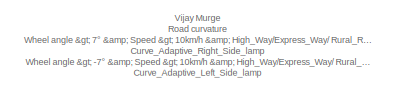
[diagram: root canvas - part 1/14, top right region]
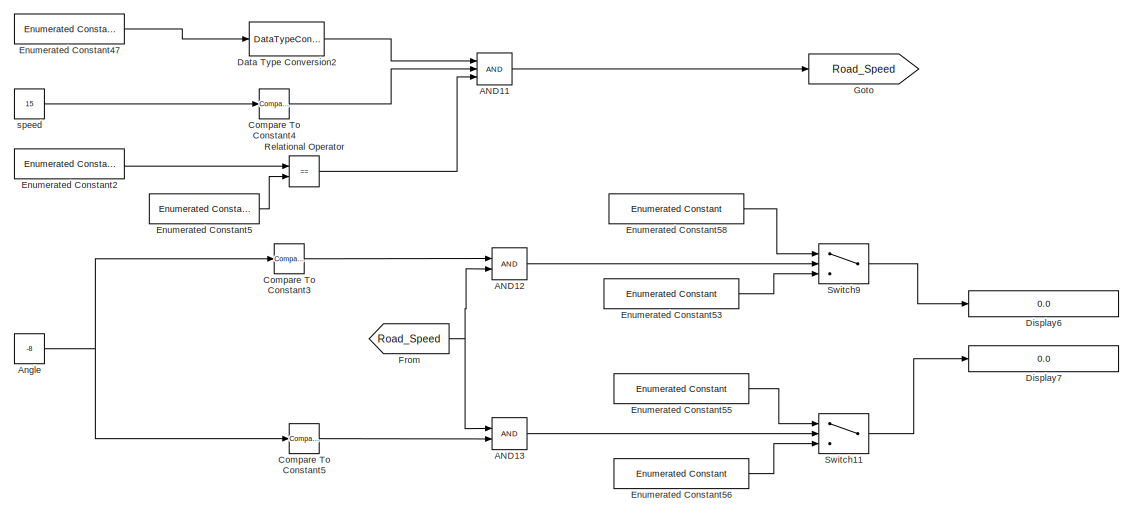
[diagram: root canvas - part 2/14, top right region]
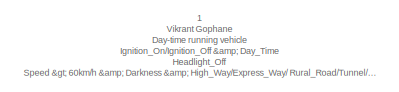
[diagram: root canvas - part 3/14, middle left region]
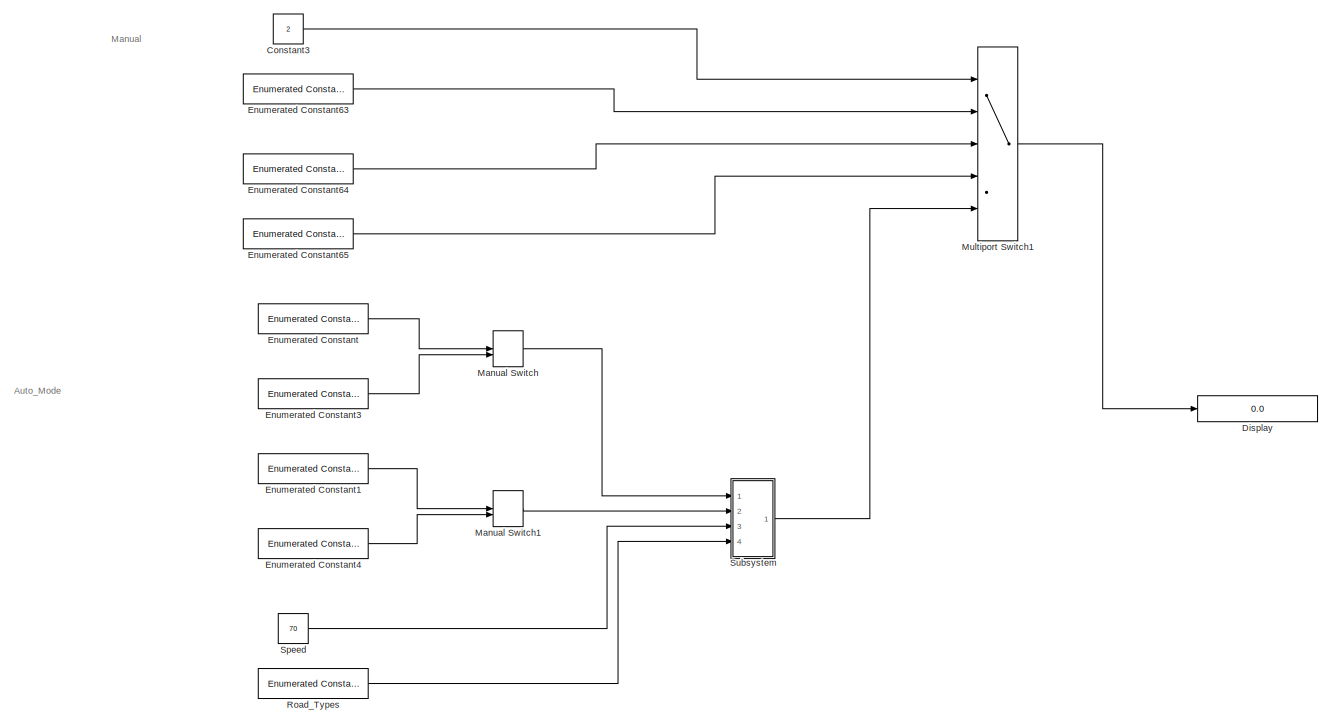
[diagram: root canvas - part 4/14, middle left region]
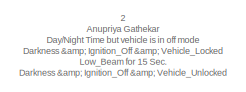
[diagram: root canvas - part 5/14, central region]
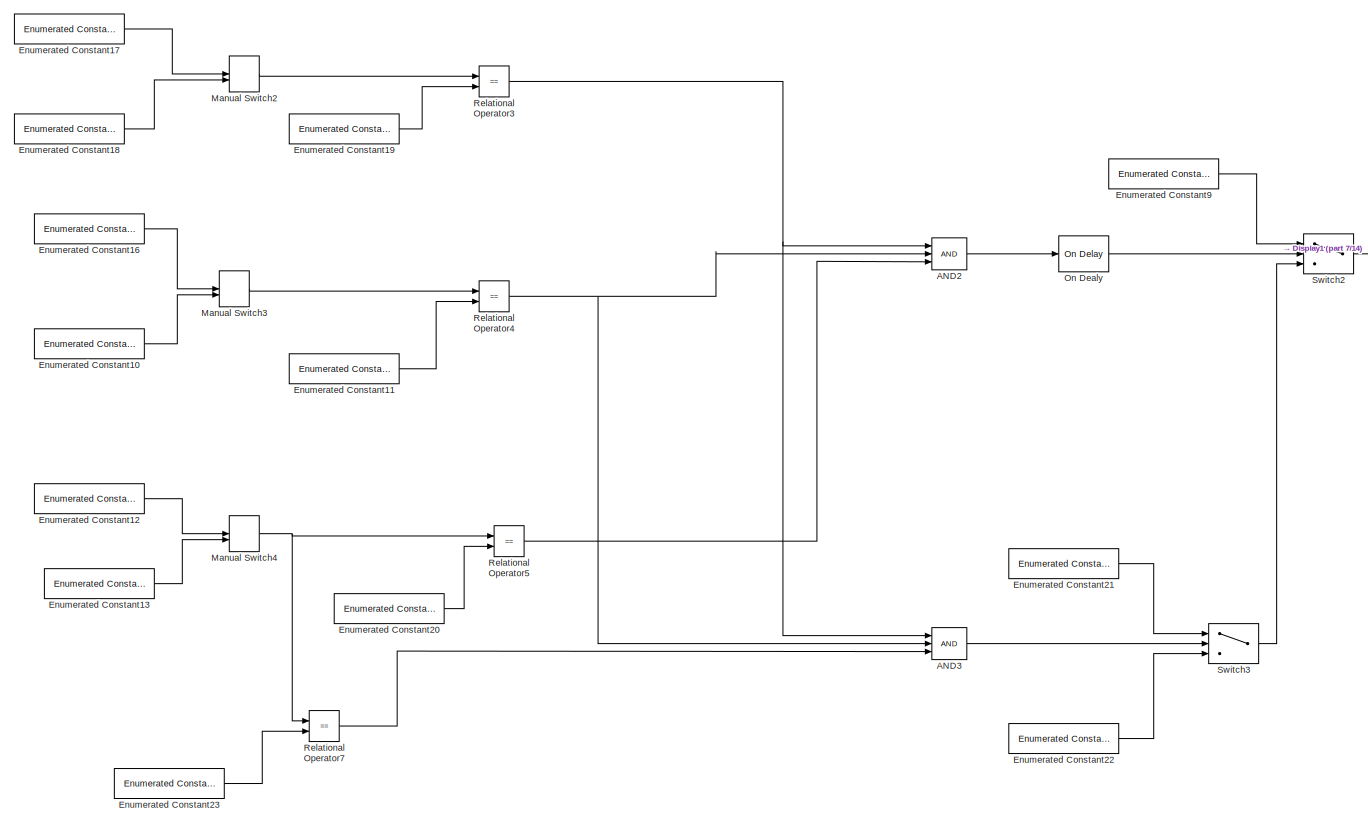
[diagram: root canvas - part 6/14, central region]
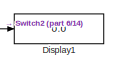
[diagram: root canvas - part 7/14, central region]
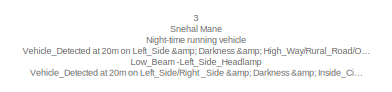
[diagram: root canvas - part 8/14, bottom left region]
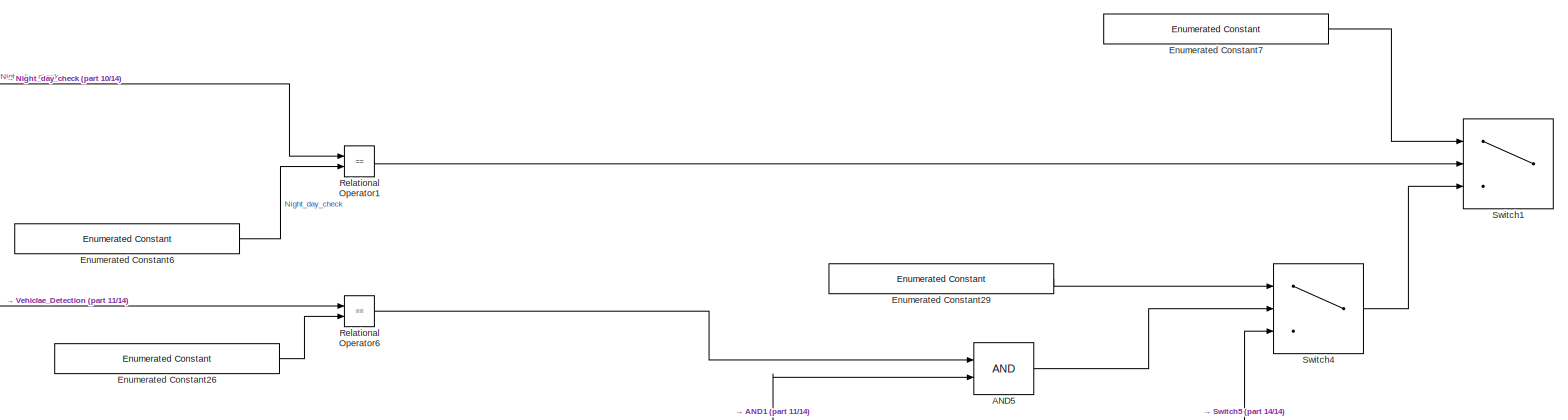
[diagram: root canvas - part 9/14, bottom left region]
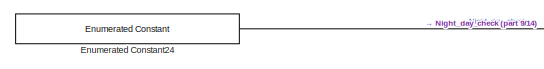
[diagram: root canvas - part 10/14, bottom left region]
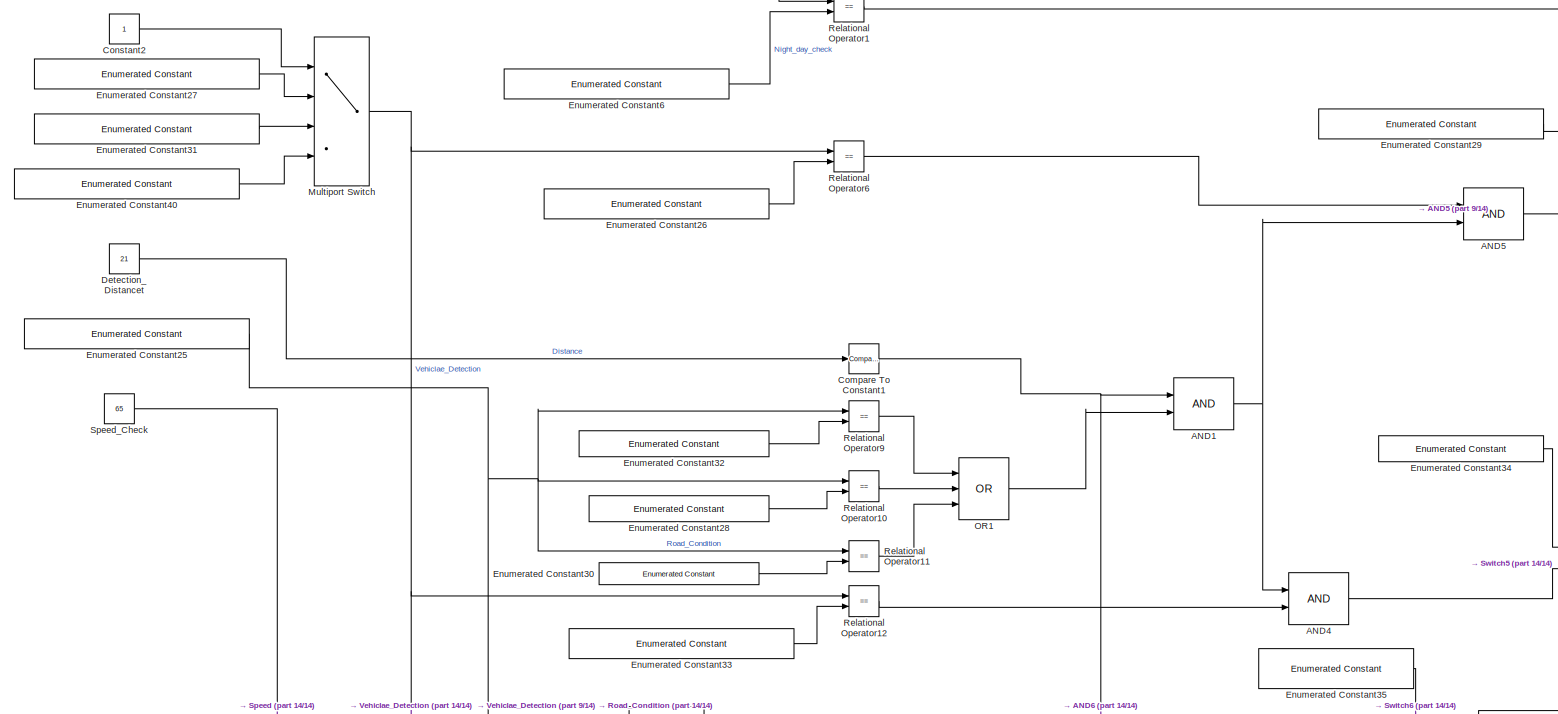
[diagram: root canvas - part 11/14, bottom left region]
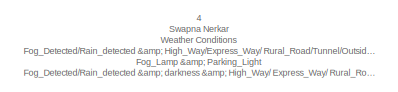
[diagram: root canvas - part 12/14, bottom center region]
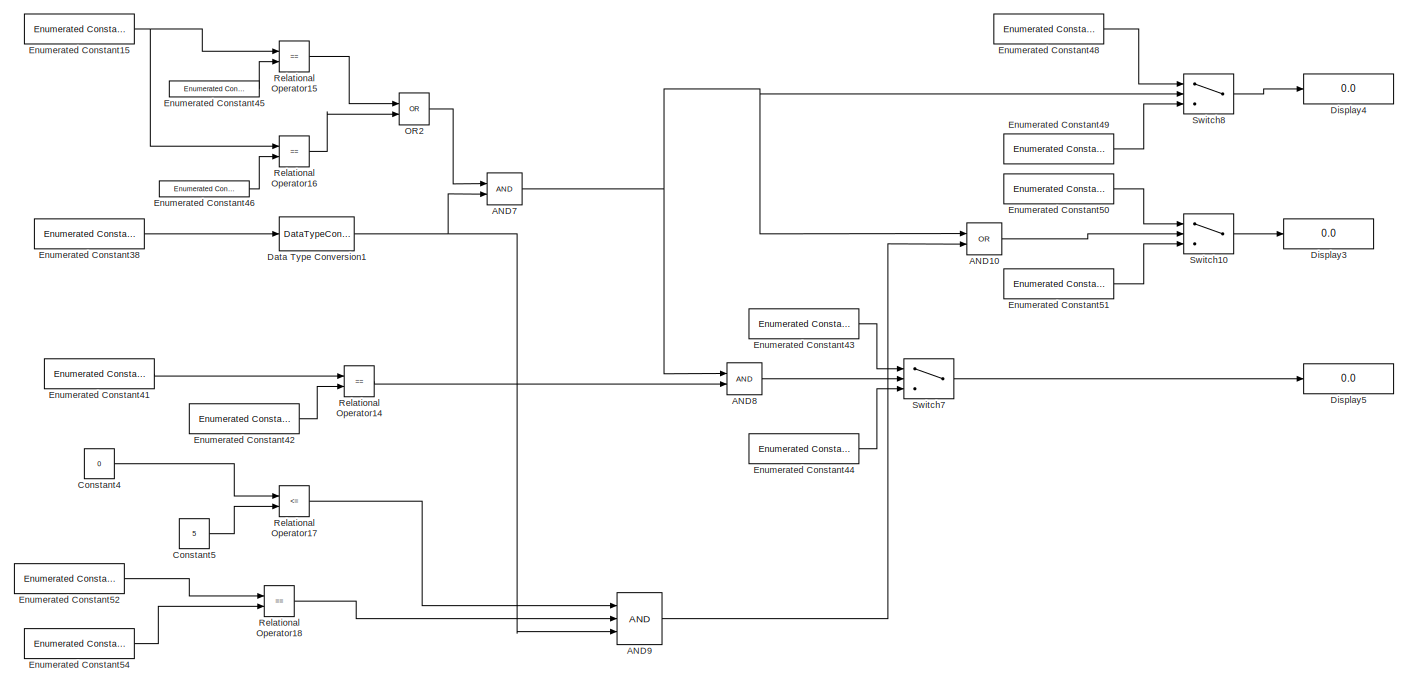
[diagram: root canvas - part 13/14, bottom center region]
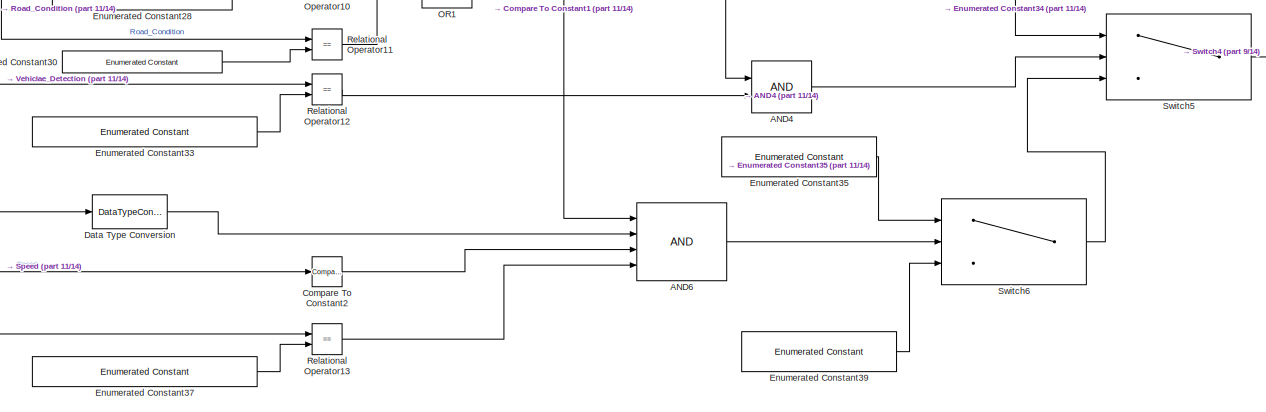
[diagram: root canvas - part 14/14, bottom left region]
MODEL slx_34dd71e5ac38
KIND model
CONFIG AbsTol = auto
CONFIG EnableMultiTasking = off
CONFIG FixedStep = 1
CONFIG MaxStep = auto
CONFIG MinStep = auto
CONFIG RelTol = 1e-3
CONFIG SampleTimeConstraint = Unconstrained
CONFIG Solver = FixedStepDiscrete
CONFIG SolverName = FixedStepDiscrete
CONFIG StartTime = 0.0
CONFIG StopTime = inf
BLOCK [Logic] AND1
  AllPortsSameDT = off
  IconShape = distinctive
  OutDataTypeStr = boolean
  Ports = [2, 1]
BLOCK [Logic] AND10
  AllPortsSameDT = off
  IconShape = distinctive
  Operator = OR
  OutDataTypeStr = boolean
  Ports = [2, 1]
BLOCK [Logic] AND11
  AllPortsSameDT = off
  IconShape = distinctive
  Inputs = 3
  OutDataTypeStr = boolean
  Ports = [3, 1]
BLOCK [Logic] AND12
  AllPortsSameDT = off
  IconShape = distinctive
  OutDataTypeStr = boolean
  Ports = [2, 1]
BLOCK [Logic] AND13
  AllPortsSameDT = off
  IconShape = distinctive
  OutDataTypeStr = boolean
  Ports = [2, 1]
BLOCK [Logic] AND2
  AllPortsSameDT = off
  IconShape = distinctive
  Inputs = 3
  OutDataTypeStr = boolean
  Ports = [3, 1]
BLOCK [Logic] AND3
  AllPortsSameDT = off
  IconShape = distinctive
  Inputs = 3
  OutDataTypeStr = boolean
  Ports = [3, 1]
BLOCK [Logic] AND4
  AllPortsSameDT = off
  IconShape = distinctive
  OutDataTypeStr = boolean
  Ports = [2, 1]
BLOCK [Logic] AND5
  AllPortsSameDT = off
  IconShape = distinctive
  OutDataTypeStr = boolean
  Ports = [2, 1]
BLOCK [Logic] AND6
  AllPortsSameDT = off
  IconShape = distinctive
  Inputs = 4
  OutDataTypeStr = boolean
  Ports = [4, 1]
BLOCK [Logic] AND7
  AllPortsSameDT = off
  IconShape = distinctive
  OutDataTypeStr = boolean
  Ports = [2, 1]
BLOCK [Logic] AND8
  AllPortsSameDT = off
  IconShape = distinctive
  OutDataTypeStr = boolean
  Ports = [2, 1]
BLOCK [Logic] AND9
  AllPortsSameDT = off
  IconShape = distinctive
  Inputs = 3
  OutDataTypeStr = boolean
  Ports = [3, 1]
BLOCK [Constant] Angle
  Value = -8
BLOCK [Reference] Compare To Constant1  REF=simulink/Logic and Bit
Operations/Compare
To Constant
  Ports = [1, 1]
  SourceBlock = simulink/Logic and Bit\nOperations/Compare\nTo Constant
  SourceProductBaseCode = SL
  SourceType = Compare To Constant
BLOCK [Reference] Compare To Constant2  REF=simulink/Logic and Bit
Operations/Compare
To Constant
  Ports = [1, 1]
  SourceBlock = simulink/Logic and Bit\nOperations/Compare\nTo Constant
  SourceProductBaseCode = SL
  SourceType = Compare To Constant
BLOCK [Reference] Compare To Constant3  REF=simulink/Logic and Bit
Operations/Compare
To Constant
  Ports = [1, 1]
  SourceBlock = simulink/Logic and Bit\nOperations/Compare\nTo Constant
  SourceProductBaseCode = SL
  SourceType = Compare To Constant
BLOCK [Reference] Compare To Constant4  REF=simulink/Logic and Bit
Operations/Compare
To Constant
  Ports = [1, 1]
  SourceBlock = simulink/Logic and Bit\nOperations/Compare\nTo Constant
  SourceProductBaseCode = SL
  SourceType = Compare To Constant
BLOCK [Reference] Compare To Constant5  REF=simulink/Logic and Bit
Operations/Compare
To Constant
  Ports = [1, 1]
  SourceBlock = simulink/Logic and Bit\nOperations/Compare\nTo Constant
  SourceProductBaseCode = SL
  SourceType = Compare To Constant
BLOCK [Constant] Constant2
BLOCK [Constant] Constant3
  Value = 2
BLOCK [Constant] Constant4
  Value = 0
BLOCK [Constant] Constant5
  Value = 5
BLOCK [DataTypeConversion] Data Type Conversion
  RndMeth = Floor
  SaturateOnIntegerOverflow = off
BLOCK [DataTypeConversion] Data Type Conversion1
  RndMeth = Floor
  SaturateOnIntegerOverflow = off
BLOCK [DataTypeConversion] Data Type Conversion2
  OutDataTypeStr = boolean
  RndMeth = Floor
  SaturateOnIntegerOverflow = off
BLOCK [Constant] Detection_Distancet
  Value = 21
BLOCK [Display] Display
  Decimation = 1
  Ports = [1]
BLOCK [Display] Display1
  Decimation = 1
  Ports = [1]
BLOCK [Display] Display3
  Decimation = 1
  Ports = [1]
BLOCK [Display] Display4
  Decimation = 1
  Ports = [1]
BLOCK [Display] Display5
  Decimation = 1
  Ports = [1]
BLOCK [Display] Display6
  Decimation = 1
  Ports = [1]
BLOCK [Display] Display7
  Decimation = 1
  Ports = [1]
BLOCK [Reference] Enumerated Constant  REF=simulink/Sources/Enumerated
Constant
  Ports = [0, 1]
  SourceBlock = simulink/Sources/Enumerated\nConstant
  SourceProductBaseCode = SL
  SourceType = Enumerated Constant
BLOCK [Reference] Enumerated Constant1  REF=simulink/Sources/Enumerated
Constant
  Ports = [0, 1]
  SourceBlock = simulink/Sources/Enumerated\nConstant
  SourceProductBaseCode = SL
  SourceType = Enumerated Constant
BLOCK [Reference] Enumerated Constant10  REF=simulink/Sources/Enumerated
Constant
  Ports = [0, 1]
  SourceBlock = simulink/Sources/Enumerated\nConstant
  SourceProductBaseCode = SL
  SourceType = Enumerated Constant
BLOCK [Reference] Enumerated Constant11  REF=simulink/Sources/Enumerated
Constant
  Ports = [0, 1]
  SourceBlock = simulink/Sources/Enumerated\nConstant
  SourceProductBaseCode = SL
  SourceType = Enumerated Constant
BLOCK [Reference] Enumerated Constant12  REF=simulink/Sources/Enumerated
Constant
  Ports = [0, 1]
  SourceBlock = simulink/Sources/Enumerated\nConstant
  SourceProductBaseCode = SL
  SourceType = Enumerated Constant
BLOCK [Reference] Enumerated Constant13  REF=simulink/Sources/Enumerated
Constant
  Ports = [0, 1]
  SourceBlock = simulink/Sources/Enumerated\nConstant
  SourceProductBaseCode = SL
  SourceType = Enumerated Constant
BLOCK [Reference] Enumerated Constant15  REF=simulink/Sources/Enumerated
Constant
  Ports = [0, 1]
  SourceBlock = simulink/Sources/Enumerated\nConstant
  SourceProductBaseCode = SL
  SourceType = Enumerated Constant
BLOCK [Reference] Enumerated Constant16  REF=simulink/Sources/Enumerated
Constant
  Ports = [0, 1]
  SourceBlock = simulink/Sources/Enumerated\nConstant
  SourceProductBaseCode = SL
  SourceType = Enumerated Constant
BLOCK [Reference] Enumerated Constant17  REF=simulink/Sources/Enumerated
Constant
  Ports = [0, 1]
  SourceBlock = simulink/Sources/Enumerated\nConstant
  SourceProductBaseCode = SL
  SourceType = Enumerated Constant
BLOCK [Reference] Enumerated Constant18  REF=simulink/Sources/Enumerated
Constant
  Ports = [0, 1]
  SourceBlock = simulink/Sources/Enumerated\nConstant
  SourceProductBaseCode = SL
  SourceType = Enumerated Constant
BLOCK [Reference] Enumerated Constant19  REF=simulink/Sources/Enumerated
Constant
  Ports = [0, 1]
  SourceBlock = simulink/Sources/Enumerated\nConstant
  SourceProductBaseCode = SL
  SourceType = Enumerated Constant
BLOCK [Reference] Enumerated Constant2  REF=simulink/Sources/Enumerated
Constant
  Ports = [0, 1]
  SourceBlock = simulink/Sources/Enumerated\nConstant
  SourceProductBaseCode = SL
  SourceType = Enumerated Constant
BLOCK [Reference] Enumerated Constant20  REF=simulink/Sources/Enumerated
Constant
  Ports = [0, 1]
  SourceBlock = simulink/Sources/Enumerated\nConstant
  SourceProductBaseCode = SL
  SourceType = Enumerated Constant
BLOCK [Reference] Enumerated Constant21  REF=simulink/Sources/Enumerated
Constant
  Ports = [0, 1]
  SourceBlock = simulink/Sources/Enumerated\nConstant
  SourceProductBaseCode = SL
  SourceType = Enumerated Constant
BLOCK [Reference] Enumerated Constant22  REF=simulink/Sources/Enumerated
Constant
  Ports = [0, 1]
  SourceBlock = simulink/Sources/Enumerated\nConstant
  SourceProductBaseCode = SL
  SourceType = Enumerated Constant
BLOCK [Reference] Enumerated Constant23  REF=simulink/Sources/Enumerated
Constant
  Ports = [0, 1]
  SourceBlock = simulink/Sources/Enumerated\nConstant
  SourceProductBaseCode = SL
  SourceType = Enumerated Constant
BLOCK [Reference] Enumerated Constant24  REF=simulink/Sources/Enumerated
Constant
  Ports = [0, 1]
  SourceBlock = simulink/Sources/Enumerated\nConstant
  SourceProductBaseCode = SL
  SourceType = Enumerated Constant
BLOCK [Reference] Enumerated Constant25  REF=simulink/Sources/Enumerated
Constant
  Ports = [0, 1]
  SourceBlock = simulink/Sources/Enumerated\nConstant
  SourceProductBaseCode = SL
  SourceType = Enumerated Constant
BLOCK [Reference] Enumerated Constant26  REF=simulink/Sources/Enumerated
Constant
  Ports = [0, 1]
  SourceBlock = simulink/Sources/Enumerated\nConstant
  SourceProductBaseCode = SL
  SourceType = Enumerated Constant
BLOCK [Reference] Enumerated Constant27  REF=simulink/Sources/Enumerated
Constant
  Ports = [0, 1]
  SourceBlock = simulink/Sources/Enumerated\nConstant
  SourceProductBaseCode = SL
  SourceType = Enumerated Constant
BLOCK [Reference] Enumerated Constant28  REF=simulink/Sources/Enumerated
Constant
  Ports = [0, 1]
  SourceBlock = simulink/Sources/Enumerated\nConstant
  SourceProductBaseCode = SL
  SourceType = Enumerated Constant
BLOCK [Reference] Enumerated Constant29  REF=simulink/Sources/Enumerated
Constant
  Ports = [0, 1]
  SourceBlock = simulink/Sources/Enumerated\nConstant
  SourceProductBaseCode = SL
  SourceType = Enumerated Constant
BLOCK [Reference] Enumerated Constant3  REF=simulink/Sources/Enumerated
Constant
  Ports = [0, 1]
  SourceBlock = simulink/Sources/Enumerated\nConstant
  SourceProductBaseCode = SL
  SourceType = Enumerated Constant
BLOCK [Reference] Enumerated Constant30  REF=simulink/Sources/Enumerated
Constant
  Ports = [0, 1]
  SourceBlock = simulink/Sources/Enumerated\nConstant
  SourceProductBaseCode = SL
  SourceType = Enumerated Constant
BLOCK [Reference] Enumerated Constant31  REF=simulink/Sources/Enumerated
Constant
  Ports = [0, 1]
  SourceBlock = simulink/Sources/Enumerated\nConstant
  SourceProductBaseCode = SL
  SourceType = Enumerated Constant
BLOCK [Reference] Enumerated Constant32  REF=simulink/Sources/Enumerated
Constant
  Ports = [0, 1]
  SourceBlock = simulink/Sources/Enumerated\nConstant
  SourceProductBaseCode = SL
  SourceType = Enumerated Constant
BLOCK [Reference] Enumerated Constant33  REF=simulink/Sources/Enumerated
Constant
  Ports = [0, 1]
  SourceBlock = simulink/Sources/Enumerated\nConstant
  SourceProductBaseCode = SL
  SourceType = Enumerated Constant
BLOCK [Reference] Enumerated Constant34  REF=simulink/Sources/Enumerated
Constant
  Ports = [0, 1]
  SourceBlock = simulink/Sources/Enumerated\nConstant
  SourceProductBaseCode = SL
  SourceType = Enumerated Constant
BLOCK [Reference] Enumerated Constant35  REF=simulink/Sources/Enumerated
Constant
  Ports = [0, 1]
  SourceBlock = simulink/Sources/Enumerated\nConstant
  SourceProductBaseCode = SL
  SourceType = Enumerated Constant
BLOCK [Reference] Enumerated Constant37  REF=simulink/Sources/Enumerated
Constant
  Ports = [0, 1]
  SourceBlock = simulink/Sources/Enumerated\nConstant
  SourceProductBaseCode = SL
  SourceType = Enumerated Constant
BLOCK [Reference] Enumerated Constant38  REF=simulink/Sources/Enumerated
Constant
  Ports = [0, 1]
  SourceBlock = simulink/Sources/Enumerated\nConstant
  SourceProductBaseCode = SL
  SourceType = Enumerated Constant
BLOCK [Reference] Enumerated Constant39  REF=simulink/Sources/Enumerated
Constant
  Ports = [0, 1]
  SourceBlock = simulink/Sources/Enumerated\nConstant
  SourceProductBaseCode = SL
  SourceType = Enumerated Constant
BLOCK [Reference] Enumerated Constant4  REF=simulink/Sources/Enumerated
Constant
  Ports = [0, 1]
  SourceBlock = simulink/Sources/Enumerated\nConstant
  SourceProductBaseCode = SL
  SourceType = Enumerated Constant
BLOCK [Reference] Enumerated Constant40  REF=simulink/Sources/Enumerated
Constant
  Ports = [0, 1]
  SourceBlock = simulink/Sources/Enumerated\nConstant
  SourceProductBaseCode = SL
  SourceType = Enumerated Constant
BLOCK [Reference] Enumerated Constant41  REF=simulink/Sources/Enumerated
Constant
  Ports = [0, 1]
  SourceBlock = simulink/Sources/Enumerated\nConstant
  SourceProductBaseCode = SL
  SourceType = Enumerated Constant
BLOCK [Reference] Enumerated Constant42  REF=simulink/Sources/Enumerated
Constant
  Ports = [0, 1]
  SourceBlock = simulink/Sources/Enumerated\nConstant
  SourceProductBaseCode = SL
  SourceType = Enumerated Constant
BLOCK [Reference] Enumerated Constant43  REF=simulink/Sources/Enumerated
Constant
  Ports = [0, 1]
  SourceBlock = simulink/Sources/Enumerated\nConstant
  SourceProductBaseCode = SL
  SourceType = Enumerated Constant
BLOCK [Reference] Enumerated Constant44  REF=simulink/Sources/Enumerated
Constant
  Ports = [0, 1]
  SourceBlock = simulink/Sources/Enumerated\nConstant
  SourceProductBaseCode = SL
  SourceType = Enumerated Constant
BLOCK [Reference] Enumerated Constant45  REF=simulink/Sources/Enumerated
Constant
  Ports = [0, 1]
  SourceBlock = simulink/Sources/Enumerated\nConstant
  SourceProductBaseCode = SL
  SourceType = Enumerated Constant
BLOCK [Reference] Enumerated Constant46  REF=simulink/Sources/Enumerated
Constant
  Ports = [0, 1]
  SourceBlock = simulink/Sources/Enumerated\nConstant
  SourceProductBaseCode = SL
  SourceType = Enumerated Constant
BLOCK [Reference] Enumerated Constant47  REF=simulink/Sources/Enumerated
Constant
  Ports = [0, 1]
  SourceBlock = simulink/Sources/Enumerated\nConstant
  SourceProductBaseCode = SL
  SourceType = Enumerated Constant
BLOCK [Reference] Enumerated Constant48  REF=simulink/Sources/Enumerated
Constant
  Ports = [0, 1]
  SourceBlock = simulink/Sources/Enumerated\nConstant
  SourceProductBaseCode = SL
  SourceType = Enumerated Constant
BLOCK [Reference] Enumerated Constant49  REF=simulink/Sources/Enumerated
Constant
  Ports = [0, 1]
  SourceBlock = simulink/Sources/Enumerated\nConstant
  SourceProductBaseCode = SL
  SourceType = Enumerated Constant
BLOCK [Reference] Enumerated Constant5  REF=simulink/Sources/Enumerated
Constant
  Ports = [0, 1]
  SourceBlock = simulink/Sources/Enumerated\nConstant
  SourceProductBaseCode = SL
  SourceType = Enumerated Constant
BLOCK [Reference] Enumerated Constant50  REF=simulink/Sources/Enumerated
Constant
  Ports = [0, 1]
  SourceBlock = simulink/Sources/Enumerated\nConstant
  SourceProductBaseCode = SL
  SourceType = Enumerated Constant
BLOCK [Reference] Enumerated Constant51  REF=simulink/Sources/Enumerated
Constant
  Ports = [0, 1]
  SourceBlock = simulink/Sources/Enumerated\nConstant
  SourceProductBaseCode = SL
  SourceType = Enumerated Constant
BLOCK [Reference] Enumerated Constant52  REF=simulink/Sources/Enumerated
Constant
  Ports = [0, 1]
  SourceBlock = simulink/Sources/Enumerated\nConstant
  SourceProductBaseCode = SL
  SourceType = Enumerated Constant
BLOCK [Reference] Enumerated Constant53  REF=simulink/Sources/Enumerated
Constant
  Ports = [0, 1]
  SourceBlock = simulink/Sources/Enumerated\nConstant
  SourceProductBaseCode = SL
  SourceType = Enumerated Constant
BLOCK [Reference] Enumerated Constant54  REF=simulink/Sources/Enumerated
Constant
  Ports = [0, 1]
  SourceBlock = simulink/Sources/Enumerated\nConstant
  SourceProductBaseCode = SL
  SourceType = Enumerated Constant
BLOCK [Reference] Enumerated Constant55  REF=simulink/Sources/Enumerated
Constant
  Ports = [0, 1]
  SourceBlock = simulink/Sources/Enumerated\nConstant
  SourceProductBaseCode = SL
  SourceType = Enumerated Constant
BLOCK [Reference] Enumerated Constant56  REF=simulink/Sources/Enumerated
Constant
  Ports = [0, 1]
  SourceBlock = simulink/Sources/Enumerated\nConstant
  SourceProductBaseCode = SL
  SourceType = Enumerated Constant
BLOCK [Reference] Enumerated Constant58  REF=simulink/Sources/Enumerated
Constant
  Ports = [0, 1]
  SourceBlock = simulink/Sources/Enumerated\nConstant
  SourceProductBaseCode = SL
  SourceType = Enumerated Constant
BLOCK [Reference] Enumerated Constant6  REF=simulink/Sources/Enumerated
Constant
  Ports = [0, 1]
  SourceBlock = simulink/Sources/Enumerated\nConstant
  SourceProductBaseCode = SL
  SourceType = Enumerated Constant
BLOCK [Reference] Enumerated Constant63  REF=simulink/Sources/Enumerated
Constant
  Ports = [0, 1]
  SourceBlock = simulink/Sources/Enumerated\nConstant
  SourceProductBaseCode = SL
  SourceType = Enumerated Constant
BLOCK [Reference] Enumerated Constant64  REF=simulink/Sources/Enumerated
Constant
  Ports = [0, 1]
  SourceBlock = simulink/Sources/Enumerated\nConstant
  SourceProductBaseCode = SL
  SourceType = Enumerated Constant
BLOCK [Reference] Enumerated Constant65  REF=simulink/Sources/Enumerated
Constant
  Ports = [0, 1]
  SourceBlock = simulink/Sources/Enumerated\nConstant
  SourceProductBaseCode = SL
  SourceType = Enumerated Constant
BLOCK [Reference] Enumerated Constant7  REF=simulink/Sources/Enumerated
Constant
  Ports = [0, 1]
  SourceBlock = simulink/Sources/Enumerated\nConstant
  SourceProductBaseCode = SL
  SourceType = Enumerated Constant
BLOCK [Reference] Enumerated Constant9  REF=simulink/Sources/Enumerated
Constant
  Ports = [0, 1]
  SourceBlock = simulink/Sources/Enumerated\nConstant
  SourceProductBaseCode = SL
  SourceType = Enumerated Constant
BLOCK [From] From
  GotoTag = Road_Speed
BLOCK [Goto] Goto
  GotoTag = Road_Speed
BLOCK [ManualSwitch] Manual Switch
  CurrentSetting = 0
BLOCK [ManualSwitch] Manual Switch1
BLOCK [ManualSwitch] Manual Switch2
  CurrentSetting = 0
BLOCK [ManualSwitch] Manual Switch3
  CurrentSetting = 0
BLOCK [ManualSwitch] Manual Switch4
BLOCK [MultiPortSwitch] Multiport Switch
  InputSameDT = off
  Ports = [4, 1]
  SaturateOnIntegerOverflow = off
BLOCK [MultiPortSwitch] Multiport Switch1
  InputSameDT = off
  Inputs = 4
  Ports = [5, 1]
  SaturateOnIntegerOverflow = off
BLOCK [Logic] OR1
  AllPortsSameDT = off
  IconShape = distinctive
  Inputs = 3
  Operator = OR
  OutDataTypeStr = boolean
  Ports = [3, 1]
BLOCK [Logic] OR2
  AllPortsSameDT = off
  IconShape = distinctive
  Operator = OR
  OutDataTypeStr = boolean
  Ports = [2, 1]
BLOCK [Reference] On Dealy  REF=powerlib_meascontrol/Logic/On Delay
  Ports = [1, 1]
  SourceBlock = powerlib_meascontrol/Logic/On Delay
  SourceProductBaseCode = PS
  SourceType = On/Off Delay
BLOCK [RelationalOperator] Relational Operator
  InputSameDT = off
  Operator = ==
  OutDataTypeStr = boolean
  Ports = [2, 1]
  RndMeth = Simplest
BLOCK [RelationalOperator] Relational Operator1
  InputSameDT = off
  Operator = ==
  OutDataTypeStr = boolean
  Ports = [2, 1]
  RndMeth = Simplest
BLOCK [RelationalOperator] Relational Operator10
  InputSameDT = off
  Operator = ==
  OutDataTypeStr = boolean
  Ports = [2, 1]
  RndMeth = Simplest
BLOCK [RelationalOperator] Relational Operator11
  InputSameDT = off
  Operator = ==
  OutDataTypeStr = boolean
  Ports = [2, 1]
  RndMeth = Simplest
BLOCK [RelationalOperator] Relational Operator12
  InputSameDT = off
  Operator = ==
  OutDataTypeStr = boolean
  Ports = [2, 1]
  RndMeth = Simplest
BLOCK [RelationalOperator] Relational Operator13
  InputSameDT = off
  Operator = ==
  OutDataTypeStr = boolean
  Ports = [2, 1]
  RndMeth = Simplest
BLOCK [RelationalOperator] Relational Operator14
  InputSameDT = off
  Operator = ==
  OutDataTypeStr = boolean
  Ports = [2, 1]
  RndMeth = Simplest
BLOCK [RelationalOperator] Relational Operator15
  InputSameDT = off
  Operator = ==
  OutDataTypeStr = boolean
  Ports = [2, 1]
  RndMeth = Simplest
BLOCK [RelationalOperator] Relational Operator16
  InputSameDT = off
  Operator = ==
  OutDataTypeStr = boolean
  Ports = [2, 1]
  RndMeth = Simplest
BLOCK [RelationalOperator] Relational Operator17
  InputSameDT = off
  Operator = <=
  OutDataTypeStr = boolean
  Ports = [2, 1]
  RndMeth = Simplest
BLOCK [RelationalOperator] Relational Operator18
  InputSameDT = off
  Operator = ==
  OutDataTypeStr = boolean
  Ports = [2, 1]
  RndMeth = Simplest
BLOCK [RelationalOperator] Relational Operator3
  InputSameDT = off
  Operator = ==
  OutDataTypeStr = boolean
  Ports = [2, 1]
  RndMeth = Simplest
BLOCK [RelationalOperator] Relational Operator4
  InputSameDT = off
  Operator = ==
  OutDataTypeStr = boolean
  Ports = [2, 1]
  RndMeth = Simplest
BLOCK [RelationalOperator] Relational Operator5
  InputSameDT = off
  Operator = ==
  OutDataTypeStr = boolean
  Ports = [2, 1]
  RndMeth = Simplest
BLOCK [RelationalOperator] Relational Operator6
  InputSameDT = off
  Operator = ==
  OutDataTypeStr = boolean
  Ports = [2, 1]
  RndMeth = Simplest
BLOCK [RelationalOperator] Relational Operator7
  InputSameDT = off
  Operator = ==
  OutDataTypeStr = boolean
  Ports = [2, 1]
  RndMeth = Simplest
BLOCK [RelationalOperator] Relational Operator9
  InputSameDT = off
  Operator = ==
  OutDataTypeStr = boolean
  Ports = [2, 1]
  RndMeth = Simplest
BLOCK [Reference] Road_Types  REF=simulink/Sources/Enumerated
Constant
  Ports = [0, 1]
  SourceBlock = simulink/Sources/Enumerated\nConstant
  SourceProductBaseCode = SL
  SourceType = Enumerated Constant
BLOCK [Constant] Speed
  Value = 70
BLOCK [Constant] Speed_Check
  Value = 65
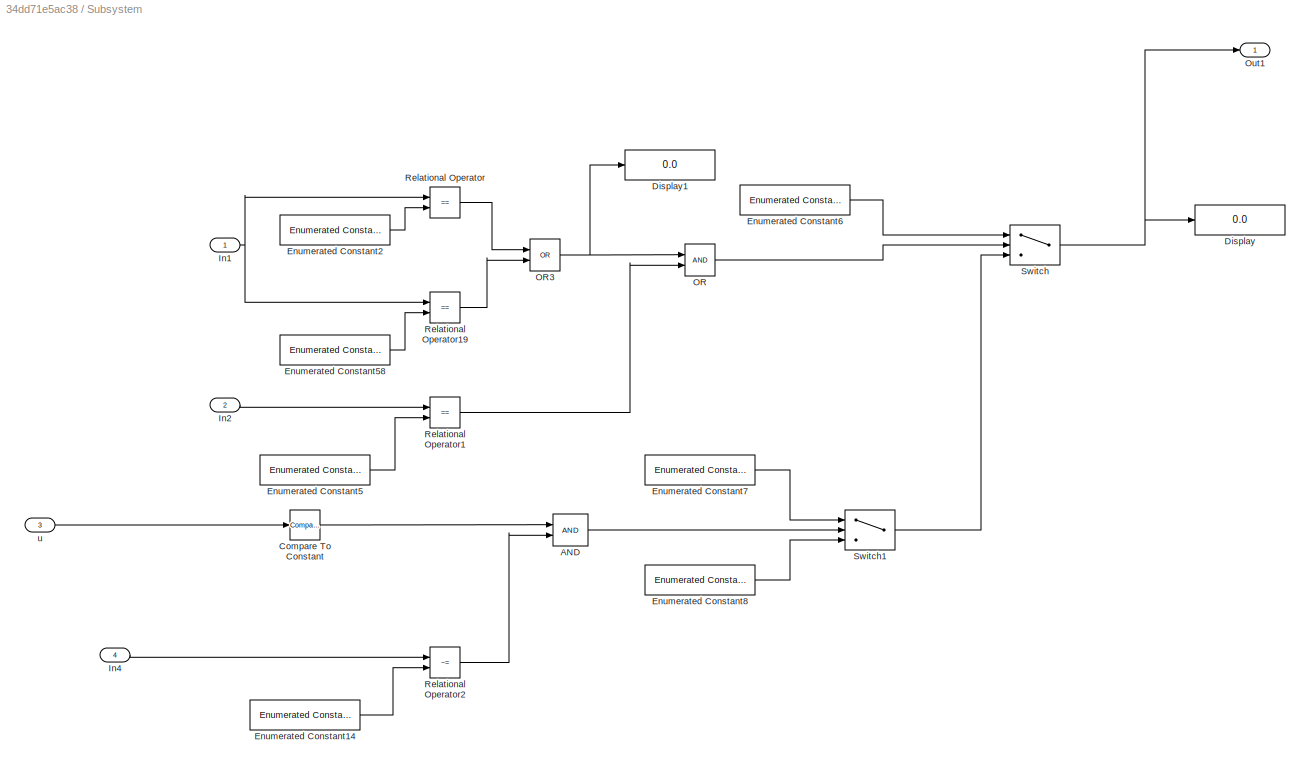
BLOCK [SubSystem] Subsystem
  Ports = [4, 1]
  RequestExecContextInheritance = off
BLOCK [Logic] Subsystem/AND
  AllPortsSameDT = off
  IconShape = distinctive
  OutDataTypeStr = boolean
  Ports = [2, 1]
BLOCK [Reference] Subsystem/Compare To Constant  REF=simulink/Logic and Bit
Operations/Compare
To Constant
  Ports = [1, 1]
  SourceBlock = simulink/Logic and Bit\nOperations/Compare\nTo Constant
  SourceProductBaseCode = SL
  SourceType = Compare To Constant
BLOCK [Display] Subsystem/Display
  Decimation = 1
  Ports = [1]
BLOCK [Display] Subsystem/Display1
  Decimation = 1
  Ports = [1]
BLOCK [Reference] Subsystem/Enumerated Constant14  REF=simulink/Sources/Enumerated
Constant
  Ports = [0, 1]
  SourceBlock = simulink/Sources/Enumerated\nConstant
  SourceProductBaseCode = SL
  SourceType = Enumerated Constant
BLOCK [Reference] Subsystem/Enumerated Constant2  REF=simulink/Sources/Enumerated
Constant
  Ports = [0, 1]
  SourceBlock = simulink/Sources/Enumerated\nConstant
  SourceProductBaseCode = SL
  SourceType = Enumerated Constant
BLOCK [Reference] Subsystem/Enumerated Constant5  REF=simulink/Sources/Enumerated
Constant
  Ports = [0, 1]
  SourceBlock = simulink/Sources/Enumerated\nConstant
  SourceProductBaseCode = SL
  SourceType = Enumerated Constant
BLOCK [Reference] Subsystem/Enumerated Constant58  REF=simulink/Sources/Enumerated
Constant
  Ports = [0, 1]
  SourceBlock = simulink/Sources/Enumerated\nConstant
  SourceProductBaseCode = SL
  SourceType = Enumerated Constant
BLOCK [Reference] Subsystem/Enumerated Constant6  REF=simulink/Sources/Enumerated
Constant
  Ports = [0, 1]
  SourceBlock = simulink/Sources/Enumerated\nConstant
  SourceProductBaseCode = SL
  SourceType = Enumerated Constant
BLOCK [Reference] Subsystem/Enumerated Constant7  REF=simulink/Sources/Enumerated
Constant
  Ports = [0, 1]
  SourceBlock = simulink/Sources/Enumerated\nConstant
  SourceProductBaseCode = SL
  SourceType = Enumerated Constant
BLOCK [Reference] Subsystem/Enumerated Constant8  REF=simulink/Sources/Enumerated
Constant
  Ports = [0, 1]
  SourceBlock = simulink/Sources/Enumerated\nConstant
  SourceProductBaseCode = SL
  SourceType = Enumerated Constant
BLOCK [Inport] Subsystem/In1
BLOCK [Inport] Subsystem/In2
  Port = 2
BLOCK [Inport] Subsystem/In4
  Port = 4
BLOCK [Logic] Subsystem/OR
  AllPortsSameDT = off
  IconShape = distinctive
  OutDataTypeStr = boolean
  Ports = [2, 1]
BLOCK [Logic] Subsystem/OR3
  AllPortsSameDT = off
  IconShape = distinctive
  Operator = OR
  OutDataTypeStr = boolean
  Ports = [2, 1]
BLOCK [Outport] Subsystem/Out1
BLOCK [RelationalOperator] Subsystem/Relational Operator
  InputSameDT = off
  Operator = ==
  OutDataTypeStr = boolean
  Ports = [2, 1]
  RndMeth = Simplest
BLOCK [RelationalOperator] Subsystem/Relational Operator1
  InputSameDT = off
  Operator = ==
  OutDataTypeStr = boolean
  Ports = [2, 1]
  RndMeth = Simplest
BLOCK [RelationalOperator] Subsystem/Relational Operator19
  InputSameDT = off
  Operator = ==
  OutDataTypeStr = boolean
  Ports = [2, 1]
  RndMeth = Simplest
BLOCK [RelationalOperator] Subsystem/Relational Operator2
  InputSameDT = off
  Operator = ~=
  OutDataTypeStr = boolean
  Ports = [2, 1]
  RndMeth = Simplest
BLOCK [Switch] Subsystem/Switch
  Criteria = u2 > Threshold
  InputSameDT = off
  SaturateOnIntegerOverflow = off
BLOCK [Switch] Subsystem/Switch1
  Criteria = u2 > Threshold
  InputSameDT = off
  SaturateOnIntegerOverflow = off
BLOCK [Inport] Subsystem/u
  Port = 3
BLOCK [Switch] Switch1
  Criteria = u2 > Threshold
  InputSameDT = off
  SaturateOnIntegerOverflow = off
BLOCK [Switch] Switch10
  Criteria = u2 > Threshold
  InputSameDT = off
  SaturateOnIntegerOverflow = off
BLOCK [Switch] Switch11
  Criteria = u2 > Threshold
  InputSameDT = off
  SaturateOnIntegerOverflow = off
BLOCK [Switch] Switch2
  Criteria = u2 > Threshold
  InputSameDT = off
  SaturateOnIntegerOverflow = off
BLOCK [Switch] Switch3
  Criteria = u2 > Threshold
  InputSameDT = off
  SaturateOnIntegerOverflow = off
BLOCK [Switch] Switch4
  Criteria = u2 > Threshold
  InputSameDT = off
  SaturateOnIntegerOverflow = off
BLOCK [Switch] Switch5
  Criteria = u2 > Threshold
  InputSameDT = off
  SaturateOnIntegerOverflow = off
BLOCK [Switch] Switch6
  Criteria = u2 > Threshold
  InputSameDT = off
  SaturateOnIntegerOverflow = off
BLOCK [Switch] Switch7
  Criteria = u2 > Threshold
  InputSameDT = off
  SaturateOnIntegerOverflow = off
BLOCK [Switch] Switch8
  Criteria = u2 > Threshold
  InputSameDT = off
  SaturateOnIntegerOverflow = off
BLOCK [Switch] Switch9
  Criteria = u2 > Threshold
  InputSameDT = off
  SaturateOnIntegerOverflow = off
BLOCK [Constant] speed
  Value = 15
ANNOTATION (root): Auto_Mode
ANNOTATION (root): Manual
ANNOTATION (root): Vijay Murge Road curvature Wheel angle > 7° & Speed > 10km/h & High_Way/Express_Way/ Rural_Road/ Inside_City_Road/ Outside_City_Road Curve_Adaptive_Right_Side_lamp Wheel angle > -7° & Speed > 10km/h & High_Way/Express_Way/ Rural_Road/ Inside_City_Road/ Outside_City_Road Curve_Adaptive_Left_Side_lamp
ANNOTATION (root): 2 Anupriya Gathekar Day/Night Time but vehicle is in off mode Darkness & Ignition_Off & Vehicle_Locked Low_Beam for 15 Sec. Darkness & Ignition_Off & Vehicle_Unlocked Low_Beam
ANNOTATION (root): 1 Vikrant Gophane Day-time running vehicle Ignition_On/Ignition_Off & Day_Time Headlight_Off Speed > 60km/h & Darkness & High_Way/Express_Way/ Rural_Road/Tunnel/Outside_City_Road High_beam Ignition_On & Day_Time & InSide_City_Road Low_Beam
ANNOTATION (root): 4 Swapna Nerkar Weather Conditions Fog_Detected/Rain_detected & High_Way/Express_Way/ Rural_Road/Tunnel/Outside_City_Road Fog_Lamp & Parking_Light Fog_Detected/Rain_detected & darkness & High_Way/ Express_Way/ Rural_Road/Tunnel/ Inside_City_Road/Outside_City_Road Low Beam ,fog lamp and parking light Parked Vehicle High_Way/Express_Way/ Rural_Road/Tunnel/Inside_City_Road/ Outside_City_Road & Igniti...<+96ch>
ANNOTATION (root): 3 Snehal Mane Night-time running vehicle Vehicle_Detected at 20m on Left_Side & Darkness & High_Way/Rural_Road/Outside_City_Road Low_Beam -Left_Side_Headlamp Vehicle_Detected at 20m on Left_Side/Right _Side & Darkness & Inside_City_Road Low_Beam Vehicle_Detected at 20m on Right_Side & Darkness & High_Way/Rural_Road/Inside_City_Road/Outside_City_Road Low_Beam -Right_Side_Headlamp Speed > 60km/h & D...<+58ch>
LINE AND10:1 -> Switch10:2
LINE AND11:1 -> Goto:1
LINE AND12:1 -> Switch9:2
LINE AND13:1 -> Switch11:2
NET AND1:1 -> AND4:1, AND5:2
LINE AND2:1 -> On Dealy:1
LINE AND3:1 -> Switch3:2
LINE AND4:1 -> Switch5:2
LINE AND5:1 -> Switch4:2
LINE AND6:1 -> Switch6:2
NET AND7:1 -> AND10:1, AND8:1, Switch8:2
LINE AND8:1 -> Switch7:2
LINE AND9:1 -> AND10:2
NET Angle:1 -> Compare To Constant3:1, Compare To Constant5:1
NET Compare To Constant1:1 -> AND1:1, AND6:1
LINE Compare To Constant2:1 -> AND6:3
LINE Compare To Constant3:1 -> AND12:1
LINE Compare To Constant4:1 -> AND11:2
LINE Compare To Constant5:1 -> AND13:2
LINE Constant2:1 -> Multiport Switch:1
LINE Constant3:1 -> Multiport Switch1:1
LINE Constant4:1 -> Relational Operator17:1
LINE Constant5:1 -> Relational Operator17:2
NET Data Type Conversion1:1 -> AND7:2, AND9:3
LINE Data Type Conversion2:1 -> AND11:1
LINE Data Type Conversion:1 -> AND6:2
LINE Detection_Distancet:1 -> Compare To Constant1:1
LINE Enumerated Constant10:1 -> Manual Switch3:2
LINE Enumerated Constant11:1 -> Relational Operator4:2
LINE Enumerated Constant12:1 -> Manual Switch4:1
LINE Enumerated Constant13:1 -> Manual Switch4:2
NET Enumerated Constant15:1 -> Relational Operator15:1, Relational Operator16:1
LINE Enumerated Constant16:1 -> Manual Switch3:1
LINE Enumerated Constant17:1 -> Manual Switch2:1
LINE Enumerated Constant18:1 -> Manual Switch2:2
LINE Enumerated Constant19:1 -> Relational Operator3:2
LINE Enumerated Constant1:1 -> Manual Switch1:1
LINE Enumerated Constant20:1 -> Relational Operator5:2
LINE Enumerated Constant21:1 -> Switch3:1
LINE Enumerated Constant22:1 -> Switch3:3
LINE Enumerated Constant23:1 -> Relational Operator7:2
LINE Enumerated Constant24:1 -> Relational Operator1:1
NET Enumerated Constant25:1 -> Data Type Conversion:1, Relational Operator10:1, Relational Operator11:1, Relational Operator9:1
LINE Enumerated Constant26:1 -> Relational Operator6:2
LINE Enumerated Constant27:1 -> Multiport Switch:2
LINE Enumerated Constant28:1 -> Relational Operator10:2
LINE Enumerated Constant29:1 -> Switch4:1
LINE Enumerated Constant2:1 -> Relational Operator:1
LINE Enumerated Constant30:1 -> Relational Operator11:2
LINE Enumerated Constant31:1 -> Multiport Switch:3
LINE Enumerated Constant32:1 -> Relational Operator9:2
LINE Enumerated Constant33:1 -> Relational Operator12:2
LINE Enumerated Constant34:1 -> Switch5:1
LINE Enumerated Constant35:1 -> Switch6:1
LINE Enumerated Constant37:1 -> Relational Operator13:2
LINE Enumerated Constant38:1 -> Data Type Conversion1:1
LINE Enumerated Constant39:1 -> Switch6:3
LINE Enumerated Constant3:1 -> Manual Switch:2
LINE Enumerated Constant40:1 -> Multiport Switch:4
LINE Enumerated Constant41:1 -> Relational Operator14:1
LINE Enumerated Constant42:1 -> Relational Operator14:2
LINE Enumerated Constant43:1 -> Switch7:1
LINE Enumerated Constant44:1 -> Switch7:3
LINE Enumerated Constant45:1 -> Relational Operator15:2
LINE Enumerated Constant46:1 -> Relational Operator16:2
LINE Enumerated Constant47:1 -> Data Type Conversion2:1
LINE Enumerated Constant48:1 -> Switch8:1
LINE Enumerated Constant49:1 -> Switch8:3
LINE Enumerated Constant4:1 -> Manual Switch1:2
LINE Enumerated Constant50:1 -> Switch10:1
LINE Enumerated Constant51:1 -> Switch10:3
LINE Enumerated Constant52:1 -> Relational Operator18:1
LINE Enumerated Constant53:1 -> Switch9:3
LINE Enumerated Constant54:1 -> Relational Operator18:2
LINE Enumerated Constant55:1 -> Switch11:1
LINE Enumerated Constant56:1 -> Switch11:3
LINE Enumerated Constant58:1 -> Switch9:1
LINE Enumerated Constant5:1 -> Relational Operator:2
LINE Enumerated Constant63:1 -> Multiport Switch1:2
LINE Enumerated Constant64:1 -> Multiport Switch1:3
LINE Enumerated Constant65:1 -> Multiport Switch1:4
LINE Enumerated Constant6:1 -> Relational Operator1:2
LINE Enumerated Constant7:1 -> Switch1:1
LINE Enumerated Constant9:1 -> Switch2:1
LINE Enumerated Constant:1 -> Manual Switch:1
NET From:1 -> AND12:2, AND13:1
LINE Manual Switch1:1 -> Subsystem:2
LINE Manual Switch2:1 -> Relational Operator3:1
LINE Manual Switch3:1 -> Relational Operator4:1
NET Manual Switch4:1 -> Relational Operator5:1, Relational Operator7:1
LINE Manual Switch:1 -> Subsystem:1
LINE Multiport Switch1:1 -> Display:1
NET Multiport Switch:1 -> Relational Operator12:1, Relational Operator13:1, Relational Operator6:1
LINE OR1:1 -> AND1:2
LINE OR2:1 -> AND7:1
LINE On Dealy:1 -> Switch2:2
LINE Relational Operator10:1 -> OR1:2
LINE Relational Operator11:1 -> OR1:3
LINE Relational Operator12:1 -> AND4:2
LINE Relational Operator13:1 -> AND6:4
LINE Relational Operator14:1 -> AND8:2
LINE Relational Operator15:1 -> OR2:1
LINE Relational Operator16:1 -> OR2:2
LINE Relational Operator17:1 -> AND9:1
LINE Relational Operator18:1 -> AND9:2
LINE Relational Operator1:1 -> Switch1:2
NET Relational Operator3:1 -> AND2:1, AND3:1
NET Relational Operator4:1 -> AND2:2, AND3:2
LINE Relational Operator5:1 -> AND2:3
LINE Relational Operator6:1 -> AND5:1
LINE Relational Operator7:1 -> AND3:3
LINE Relational Operator9:1 -> OR1:1
LINE Relational Operator:1 -> AND11:3
LINE Road_Types:1 -> Subsystem:4
LINE Speed:1 -> Subsystem:3
LINE Speed_Check:1 -> Compare To Constant2:1
LINE Subsystem/AND:1 -> Subsystem/Switch1:2
LINE Subsystem/Compare To Constant:1 -> Subsystem/AND:1
LINE Subsystem/Enumerated Constant14:1 -> Subsystem/Relational Operator2:2
LINE Subsystem/Enumerated Constant2:1 -> Subsystem/Relational Operator:2
LINE Subsystem/Enumerated Constant58:1 -> Subsystem/Relational Operator19:2
LINE Subsystem/Enumerated Constant5:1 -> Subsystem/Relational Operator1:2
LINE Subsystem/Enumerated Constant6:1 -> Subsystem/Switch:1
LINE Subsystem/Enumerated Constant7:1 -> Subsystem/Switch1:1
LINE Subsystem/Enumerated Constant8:1 -> Subsystem/Switch1:3
NET Subsystem/In1:1 -> Subsystem/Relational Operator19:1, Subsystem/Relational Operator:1
LINE Subsystem/In2:1 -> Subsystem/Relational Operator1:1
LINE Subsystem/In4:1 -> Subsystem/Relational Operator2:1
NET Subsystem/OR3:1 -> Subsystem/Display1:1, Subsystem/OR:1
LINE Subsystem/OR:1 -> Subsystem/Switch:2
LINE Subsystem/Relational Operator19:1 -> Subsystem/OR3:2
LINE Subsystem/Relational Operator1:1 -> Subsystem/OR:2
LINE Subsystem/Relational Operator2:1 -> Subsystem/AND:2
LINE Subsystem/Relational Operator:1 -> Subsystem/OR3:1
LINE Subsystem/Switch1:1 -> Subsystem/Switch:3
NET Subsystem/Switch:1 -> Subsystem/Display:1, Subsystem/Out1:1
LINE Subsystem/u:1 -> Subsystem/Compare To Constant:1
LINE Subsystem:1 -> Multiport Switch1:5
LINE Switch10:1 -> Display3:1
LINE Switch11:1 -> Display7:1
LINE Switch2:1 -> Display1:1
LINE Switch3:1 -> Switch2:3
LINE Switch4:1 -> Switch1:3
LINE Switch5:1 -> Switch4:3
LINE Switch6:1 -> Switch5:3
LINE Switch7:1 -> Display5:1
LINE Switch8:1 -> Display4:1
LINE Switch9:1 -> Display6:1
LINE speed:1 -> Compare To Constant4:1
note: NET lines group one-source signal fan-out (src -> all destinations, sorted); 1:1 wires keep LINE
